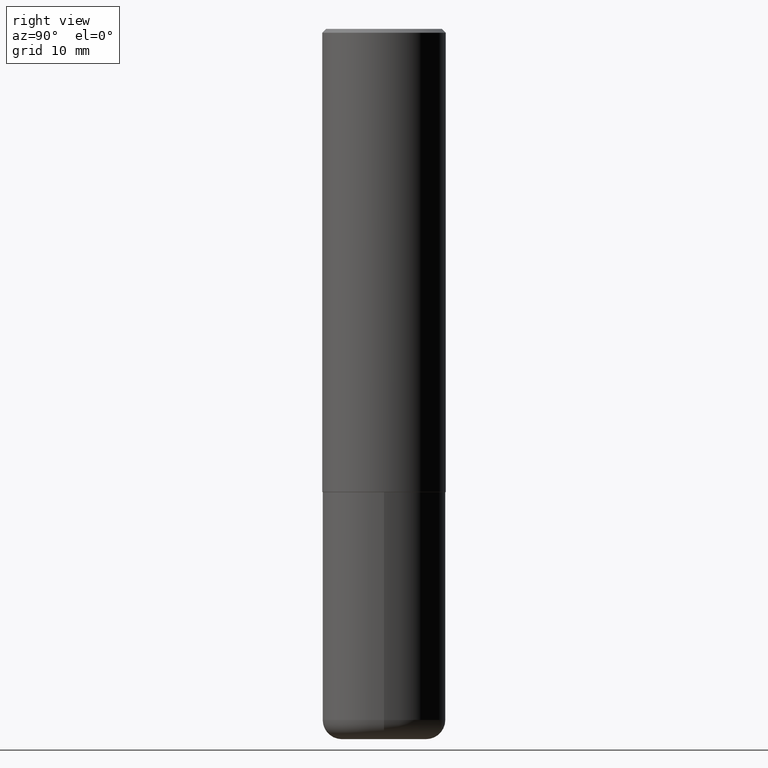
[diagram: clean part render]
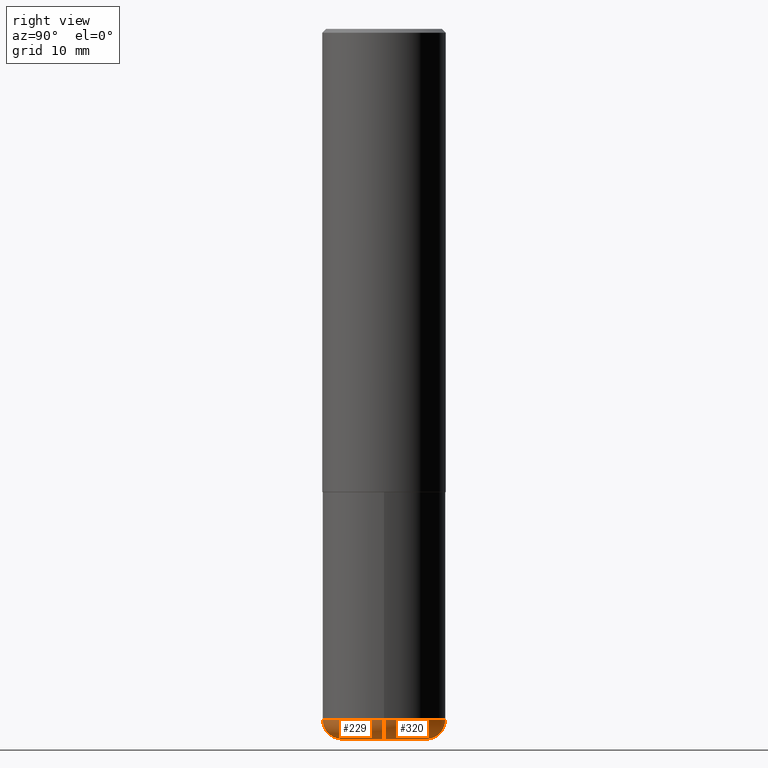
[diagram: same view with one multi-face feature highlighted, each face labeled with its STEP entity id]
A machine part, right view. The highlighted faces form ONE feature: a constant-radius fillet chain: 2 tangent blend faces with common blend radius 2.4994 mm. The faces share edges in the B-rep.
Their STEP definitions:
[1] entity #320 (Torus):
#14 = AXIS2_PLACEMENT_3D ( 'NONE', #130, #226, #355 ) ;
#24 = VERTEX_POINT ( 'NONE', #219 ) ;
#52 = FACE_OUTER_BOUND ( 'NONE', #272, .T. ) ;
#54 = CARTESIAN_POINT ( 'NONE',  ( 8.616853885473946211E-29, -1.230258364554770589E-14, -3.523599999999999621 ) ) ;
#67 = DIRECTION ( 'NONE',  ( 1.000000000000000000, -6.982962677686264344E-15, 0.000000000000000000 ) ) ;
#69 = CARTESIAN_POINT ( 'NONE',  ( -0.3149499999999999522, -1.006472929927126990E-14, -3.523599999999999621 ) ) ;
#74 = DIRECTION ( 'NONE',  ( 1.000000000000000000, -6.982962677686269866E-15, 0.000000000000000000 ) ) ;
#75 = CARTESIAN_POINT ( 'NONE',  ( 0.2165500000000000203, -1.381474421340066671E-14, -3.523599999999999621 ) ) ;
#80 = EDGE_CURVE ( 'NONE', #84, #418, #390, .T. ) ;
#84 = VERTEX_POINT ( 'NONE', #252 ) ;
#89 = CARTESIAN_POINT ( 'NONE',  ( 8.616853885473946211E-29, -1.230258364554770589E-14, -3.523599999999999621 ) ) ;
#102 = AXIS2_PLACEMENT_3D ( 'NONE', #89, #217, #74 ) ;
#116 = ORIENTED_EDGE ( 'NONE', *, *, #80, .T. ) ;
#118 = ORIENTED_EDGE ( 'NONE', *, *, #236, .T. ) ;
#130 = CARTESIAN_POINT ( 'NONE',  ( -0.2165500000000000203, -1.076390335125921037E-14, -3.523599999999999621 ) ) ;
#134 = AXIS2_PLACEMENT_3D ( 'NONE', #75, #165, #199 ) ;
#136 = EDGE_CURVE ( 'NONE', #24, #239, #228, .T. ) ;
#150 = CIRCLE ( 'NONE', #134, 0.09839999999999986258 ) ;
#159 = EDGE_CURVE ( 'NONE', #84, #24, #150, .T. ) ;
#165 = DIRECTION ( 'NONE',  ( -6.982962677686266711E-15, -1.000000000000000000, 3.491481338843145583E-15 ) ) ;
#175 = ORIENTED_EDGE ( 'NONE', *, *, #136, .F. ) ;
#185 = TOROIDAL_SURFACE ( 'NONE', #212, 0.2165500000000000203, 0.09839999999999984870 ) ;
#188 = CARTESIAN_POINT ( 'NONE',  ( 8.857488016002563354E-29, -1.264614540928987041E-14, -3.621999999999999442 ) ) ;
#199 = DIRECTION ( 'NONE',  ( 1.000000000000000000, -6.982962677686271444E-15, 0.000000000000000000 ) ) ;
#212 = AXIS2_PLACEMENT_3D ( 'NONE', #54, #286, #343 ) ;
#217 = DIRECTION ( 'NONE',  ( -2.445468806185136597E-29, 3.491481338843145583E-15, 1.000000000000000000 ) ) ;
#219 = CARTESIAN_POINT ( 'NONE',  ( 0.3149499999999999522, -1.450186774088499734E-14, -3.523599999999999621 ) ) ;
#226 = DIRECTION ( 'NONE',  ( 7.105427357601001859E-15, 1.000000000000000000, -3.491481338843145583E-15 ) ) ;
#228 = CIRCLE ( 'NONE', #102, 0.3149500000000000077 ) ;
#236 = EDGE_CURVE ( 'NONE', #418, #239, #332, .T. ) ;
#239 = VERTEX_POINT ( 'NONE', #69 ) ;
#252 = CARTESIAN_POINT ( 'NONE',  ( 0.2165500000000000203, -1.415830597714283123E-14, -3.621999999999999442 ) ) ;
#272 = EDGE_LOOP ( 'NONE', ( #116, #118, #175, #351 ) ) ;
#284 = DIRECTION ( 'NONE',  ( -2.445468806185136597E-29, 3.491481338843145583E-15, 1.000000000000000000 ) ) ;
#286 = DIRECTION ( 'NONE',  ( -2.445468806185136597E-29, 3.491481338843145583E-15, 1.000000000000000000 ) ) ;
#320 = ADVANCED_FACE ( 'NONE', ( #52 ), #185, .T. ) ;
#332 = CIRCLE ( 'NONE', #14, 0.09839999999999986258 ) ;
#343 = DIRECTION ( 'NONE',  ( 1.000000000000000000, -6.982962677686266711E-15, 4.883557194083112901E-29 ) ) ;
#351 = ORIENTED_EDGE ( 'NONE', *, *, #159, .F. ) ;
#355 = DIRECTION ( 'NONE',  ( -1.000000000000000000, 7.105427357601009747E-15, 0.000000000000000000 ) ) ;
#357 = AXIS2_PLACEMENT_3D ( 'NONE', #188, #284, #67 ) ;
#368 = CARTESIAN_POINT ( 'NONE',  ( -0.2165500000000000203, -1.058609720713632398E-14, -3.621999999999999442 ) ) ;
#390 = CIRCLE ( 'NONE', #357, 0.2165500000000000203 ) ;
#418 = VERTEX_POINT ( 'NONE', #368 ) ;
[2] entity #229 (Torus):
#5 = DIRECTION ( 'NONE',  ( -2.445468806185136597E-29, 3.491481338843145583E-15, 1.000000000000000000 ) ) ;
#14 = AXIS2_PLACEMENT_3D ( 'NONE', #130, #226, #355 ) ;
#24 = VERTEX_POINT ( 'NONE', #219 ) ;
#49 = DIRECTION ( 'NONE',  ( 1.000000000000000000, -6.982962677686264344E-15, 0.000000000000000000 ) ) ;
#69 = CARTESIAN_POINT ( 'NONE',  ( -0.3149499999999999522, -1.006472929927126990E-14, -3.523599999999999621 ) ) ;
#75 = CARTESIAN_POINT ( 'NONE',  ( 0.2165500000000000203, -1.381474421340066671E-14, -3.523599999999999621 ) ) ;
#81 = AXIS2_PLACEMENT_3D ( 'NONE', #169, #167, #49 ) ;
#82 = ORIENTED_EDGE ( 'NONE', *, *, #168, .T. ) ;
#84 = VERTEX_POINT ( 'NONE', #252 ) ;
#115 = CIRCLE ( 'NONE', #81, 0.2165500000000000203 ) ;
#124 = ORIENTED_EDGE ( 'NONE', *, *, #398, .F. ) ;
#130 = CARTESIAN_POINT ( 'NONE',  ( -0.2165500000000000203, -1.076390335125921037E-14, -3.523599999999999621 ) ) ;
#134 = AXIS2_PLACEMENT_3D ( 'NONE', #75, #165, #199 ) ;
#150 = CIRCLE ( 'NONE', #134, 0.09839999999999986258 ) ;
#156 = DIRECTION ( 'NONE',  ( 1.000000000000000000, -6.982962677686269866E-15, 0.000000000000000000 ) ) ;
#159 = EDGE_CURVE ( 'NONE', #84, #24, #150, .T. ) ;
#165 = DIRECTION ( 'NONE',  ( -6.982962677686266711E-15, -1.000000000000000000, 3.491481338843145583E-15 ) ) ;
#167 = DIRECTION ( 'NONE',  ( -2.445468806185136597E-29, 3.491481338843145583E-15, 1.000000000000000000 ) ) ;
#168 = EDGE_CURVE ( 'NONE', #418, #84, #115, .T. ) ;
#169 = CARTESIAN_POINT ( 'NONE',  ( 8.857488016002563354E-29, -1.264614540928987041E-14, -3.621999999999999442 ) ) ;
#199 = DIRECTION ( 'NONE',  ( 1.000000000000000000, -6.982962677686271444E-15, 0.000000000000000000 ) ) ;
#205 = CIRCLE ( 'NONE', #256, 0.3149500000000000077 ) ;
#219 = CARTESIAN_POINT ( 'NONE',  ( 0.3149499999999999522, -1.450186774088499734E-14, -3.523599999999999621 ) ) ;
#226 = DIRECTION ( 'NONE',  ( 7.105427357601001859E-15, 1.000000000000000000, -3.491481338843145583E-15 ) ) ;
#229 = ADVANCED_FACE ( 'NONE', ( #294 ), #348, .T. ) ;
#234 = DIRECTION ( 'NONE',  ( 1.000000000000000000, -6.982962677686266711E-15, 4.883557194083112901E-29 ) ) ;
#236 = EDGE_CURVE ( 'NONE', #418, #239, #332, .T. ) ;
#239 = VERTEX_POINT ( 'NONE', #69 ) ;
#251 = DIRECTION ( 'NONE',  ( -2.445468806185136597E-29, 3.491481338843145583E-15, 1.000000000000000000 ) ) ;
#252 = CARTESIAN_POINT ( 'NONE',  ( 0.2165500000000000203, -1.415830597714283123E-14, -3.621999999999999442 ) ) ;
#256 = AXIS2_PLACEMENT_3D ( 'NONE', #410, #251, #156 ) ;
#262 = CARTESIAN_POINT ( 'NONE',  ( 8.616853885473946211E-29, -1.230258364554770589E-14, -3.523599999999999621 ) ) ;
#279 = ORIENTED_EDGE ( 'NONE', *, *, #236, .F. ) ;
#294 = FACE_OUTER_BOUND ( 'NONE', #342, .T. ) ;
#332 = CIRCLE ( 'NONE', #14, 0.09839999999999986258 ) ;
#342 = EDGE_LOOP ( 'NONE', ( #279, #82, #409, #124 ) ) ;
#348 = TOROIDAL_SURFACE ( 'NONE', #365, 0.2165500000000000203, 0.09839999999999984870 ) ;
#355 = DIRECTION ( 'NONE',  ( -1.000000000000000000, 7.105427357601009747E-15, 0.000000000000000000 ) ) ;
#365 = AXIS2_PLACEMENT_3D ( 'NONE', #262, #5, #234 ) ;
#368 = CARTESIAN_POINT ( 'NONE',  ( -0.2165500000000000203, -1.058609720713632398E-14, -3.621999999999999442 ) ) ;
#398 = EDGE_CURVE ( 'NONE', #239, #24, #205, .T. ) ;
#409 = ORIENTED_EDGE ( 'NONE', *, *, #159, .T. ) ;
#410 = CARTESIAN_POINT ( 'NONE',  ( 8.616853885473946211E-29, -1.230258364554770589E-14, -3.523599999999999621 ) ) ;
#418 = VERTEX_POINT ( 'NONE', #368 ) ;